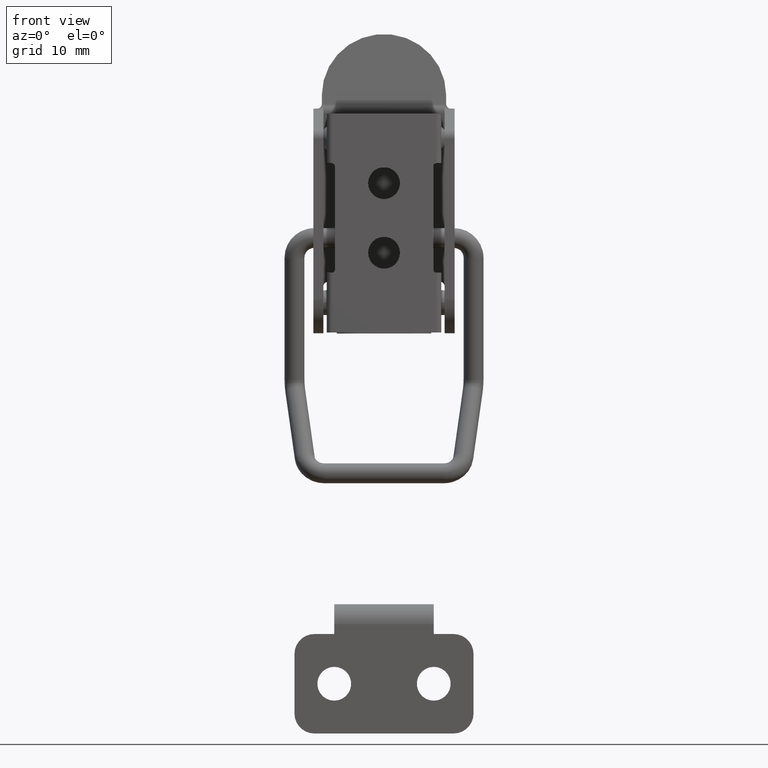
[diagram: clean part render]
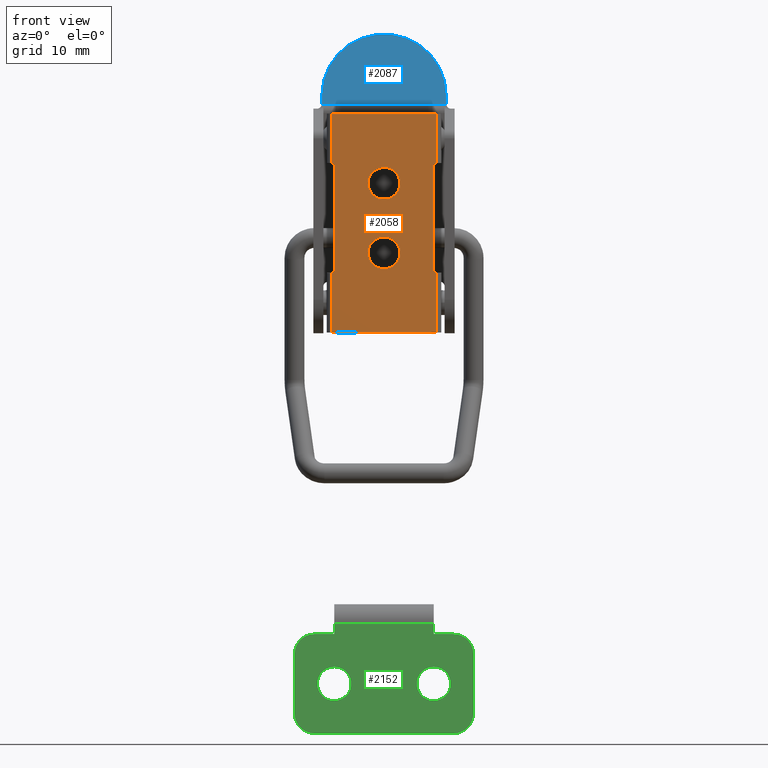
[diagram: same view with three faces highlighted in distinct colors, each labeled with its STEP entity id]
A machine part, front view with three faces highlighted in distinct colors.
Their STEP definitions:

[orange] entity #2058 — the highlighted planar face has unit normal (0, -1, 0).
#74=PLANE('',#2208);
#131=LINE('',#3127,#297);
#141=LINE('',#3158,#307);
#148=LINE('',#3182,#314);
#149=LINE('',#3185,#315);
#150=LINE('',#3187,#316);
#151=LINE('',#3188,#317);
#152=LINE('',#3190,#318);
#153=LINE('',#3191,#319);
#297=VECTOR('',#2466,10.4);
#307=VECTOR('',#2494,10.4);
#314=VECTOR('',#2517,5.99999999999997);
#315=VECTOR('',#2520,5.);
#316=VECTOR('',#2521,10.5);
#317=VECTOR('',#2522,5.);
#318=VECTOR('',#2523,5.99999999999997);
#319=VECTOR('',#2524,10.5);
#465=FACE_BOUND('',#655,.T.);
#466=FACE_BOUND('',#656,.T.);
#528=FACE_OUTER_BOUND('',#654,.T.);
#654=EDGE_LOOP('',(#1461,#1462,#1463,#1464,#1465,#1466,#1467,#1468,#1469,
#1470,#1471,#1472));
#655=EDGE_LOOP('',(#1473));
#656=EDGE_LOOP('',(#1474));
#809=CIRCLE('',#2172,1.6);
#811=CIRCLE('',#2175,1.6);
#820=CIRCLE('',#2189,0.3);
#822=CIRCLE('',#2193,0.3);
#825=CIRCLE('',#2198,0.3);
#827=CIRCLE('',#2202,0.3);
#919=VERTEX_POINT('',#3088);
#921=VERTEX_POINT('',#3093);
#931=VERTEX_POINT('',#3117);
#932=VERTEX_POINT('',#3119);
#934=VERTEX_POINT('',#3125);
#936=VERTEX_POINT('',#3131);
#943=VERTEX_POINT('',#3148);
#944=VERTEX_POINT('',#3150);
#946=VERTEX_POINT('',#3156);
#948=VERTEX_POINT('',#3162);
#953=VERTEX_POINT('',#3176);
#956=VERTEX_POINT('',#3184);
#957=VERTEX_POINT('',#3186);
#958=VERTEX_POINT('',#3189);
#1123=EDGE_CURVE('',#919,#919,#809,.T.);
#1125=EDGE_CURVE('',#921,#921,#811,.T.);
#1135=EDGE_CURVE('',#931,#932,#820,.T.);
#1139=EDGE_CURVE('',#934,#931,#131,.T.);
#1142=EDGE_CURVE('',#936,#934,#822,.T.);
#1150=EDGE_CURVE('',#943,#944,#825,.T.);
#1154=EDGE_CURVE('',#946,#943,#141,.T.);
#1157=EDGE_CURVE('',#948,#946,#827,.T.);
#1166=EDGE_CURVE('',#932,#953,#148,.T.);
#1167=EDGE_CURVE('',#956,#936,#149,.T.);
#1168=EDGE_CURVE('',#957,#956,#150,.T.);
#1169=EDGE_CURVE('',#944,#957,#151,.T.);
#1170=EDGE_CURVE('',#958,#948,#152,.T.);
#1171=EDGE_CURVE('',#953,#958,#153,.T.);
#1461=ORIENTED_EDGE('',*,*,#1166,.F.);
#1462=ORIENTED_EDGE('',*,*,#1135,.F.);
#1463=ORIENTED_EDGE('',*,*,#1139,.F.);
#1464=ORIENTED_EDGE('',*,*,#1142,.F.);
#1465=ORIENTED_EDGE('',*,*,#1167,.F.);
#1466=ORIENTED_EDGE('',*,*,#1168,.F.);
#1467=ORIENTED_EDGE('',*,*,#1169,.F.);
#1468=ORIENTED_EDGE('',*,*,#1150,.F.);
#1469=ORIENTED_EDGE('',*,*,#1154,.F.);
#1470=ORIENTED_EDGE('',*,*,#1157,.F.);
#1471=ORIENTED_EDGE('',*,*,#1170,.F.);
#1472=ORIENTED_EDGE('',*,*,#1171,.F.);
#1473=ORIENTED_EDGE('',*,*,#1123,.T.);
#1474=ORIENTED_EDGE('',*,*,#1125,.T.);
#2058=ADVANCED_FACE('',(#528,#465,#466),#74,.T.);
#2172=AXIS2_PLACEMENT_3D('',#3089,#2424,#2425);
#2175=AXIS2_PLACEMENT_3D('',#3094,#2430,#2431);
#2189=AXIS2_PLACEMENT_3D('',#3120,#2459,#2460);
#2193=AXIS2_PLACEMENT_3D('',#3133,#2472,#2473);
#2198=AXIS2_PLACEMENT_3D('',#3151,#2487,#2488);
#2202=AXIS2_PLACEMENT_3D('',#3164,#2500,#2501);
#2208=AXIS2_PLACEMENT_3D('',#3183,#2518,#2519);
#2424=DIRECTION('center_axis',(0.,1.,0.));
#2425=DIRECTION('ref_axis',(1.,0.,0.));
#2430=DIRECTION('center_axis',(0.,1.,0.));
#2431=DIRECTION('ref_axis',(1.,0.,0.));
#2459=DIRECTION('center_axis',(0.,-1.,0.));
#2460=DIRECTION('ref_axis',(-0.707106781186545,0.,-0.70710678118655));
#2466=DIRECTION('',(0.,0.,-1.));
#2472=DIRECTION('center_axis',(0.,-1.,0.));
#2473=DIRECTION('ref_axis',(-0.707106781186547,0.,0.707106781186547));
#2487=DIRECTION('center_axis',(0.,-1.,0.));
#2488=DIRECTION('ref_axis',(0.707106781186547,0.,0.707106781186547));
#2494=DIRECTION('',(0.,0.,1.));
#2500=DIRECTION('center_axis',(0.,-1.,0.));
#2501=DIRECTION('ref_axis',(0.707106781186545,0.,-0.70710678118655));
#2517=DIRECTION('',(0.,0.,-1.));
#2518=DIRECTION('center_axis',(0.,-1.,0.));
#2519=DIRECTION('ref_axis',(0.,0.,-1.));
#2520=DIRECTION('',(0.,0.,-1.));
#2521=DIRECTION('',(1.,0.,0.));
#2522=DIRECTION('',(0.,0.,1.));
#2523=DIRECTION('',(0.,0.,1.));
#2524=DIRECTION('',(-1.,0.,0.));
#3088=CARTESIAN_POINT('',(-1.6,1.11022302462516E-15,-14.));
#3089=CARTESIAN_POINT('Origin',(0.,1.11022302462516E-15,-14.));
#3093=CARTESIAN_POINT('',(-1.6,5.55111512312578E-16,-7.));
#3094=CARTESIAN_POINT('Origin',(0.,5.55111512312578E-16,-7.));
#3117=CARTESIAN_POINT('',(4.95,0.,-15.7));
#3119=CARTESIAN_POINT('',(5.25,0.,-16.));
#3120=CARTESIAN_POINT('Origin',(5.25,0.,-15.7));
#3125=CARTESIAN_POINT('',(4.95,0.,-5.3));
#3127=CARTESIAN_POINT('',(4.95,0.,-22.));
#3131=CARTESIAN_POINT('',(5.25,0.,-5.));
#3133=CARTESIAN_POINT('Origin',(5.25,0.,-5.3));
#3148=CARTESIAN_POINT('',(-4.95,0.,-5.3));
#3150=CARTESIAN_POINT('',(-5.25,0.,-5.));
#3151=CARTESIAN_POINT('Origin',(-5.25,0.,-5.3));
#3156=CARTESIAN_POINT('',(-4.95,0.,-15.7));
#3158=CARTESIAN_POINT('',(-4.95,0.,-22.));
#3162=CARTESIAN_POINT('',(-5.25,0.,-16.));
#3164=CARTESIAN_POINT('Origin',(-5.25,0.,-15.7));
#3176=CARTESIAN_POINT('',(5.25,0.,-22.));
#3182=CARTESIAN_POINT('',(5.25,0.,-9.50000000000001));
#3183=CARTESIAN_POINT('Origin',(0.,0.,0.));
#3184=CARTESIAN_POINT('',(5.25,0.,0.));
#3185=CARTESIAN_POINT('',(5.25,0.,-1.25));
#3186=CARTESIAN_POINT('',(-5.25,0.,0.));
#3187=CARTESIAN_POINT('',(0.,0.,0.));
#3188=CARTESIAN_POINT('',(-5.25,0.,-1.25));
#3189=CARTESIAN_POINT('',(-5.25,0.,-22.));
#3190=CARTESIAN_POINT('',(-5.25,0.,-9.50000000000001));
#3191=CARTESIAN_POINT('',(0.,0.,-22.));

[blue] entity #2087 — the highlighted planar face has unit normal (0, -0.9821, 0.1883).
#38=ELLIPSE('',#2269,0.509111947282336,0.5);
#39=ELLIPSE('',#2271,0.509111947282336,0.5);
#92=PLANE('',#2268);
#203=LINE('',#3366,#369);
#205=LINE('',#3383,#371);
#206=LINE('',#3387,#372);
#369=VECTOR('',#2692,12.5035831146045);
#371=VECTOR('',#2698,0.877555151719126);
#372=VECTOR('',#2701,0.877579263517805);
#557=FACE_OUTER_BOUND('',#699,.T.);
#699=EDGE_LOOP('',(#1645,#1646,#1647,#1648,#1649,#1650));
#861=CIRCLE('',#2270,6.25);
#1013=VERTEX_POINT('',#3354);
#1014=VERTEX_POINT('',#3365);
#1016=VERTEX_POINT('',#3380);
#1017=VERTEX_POINT('',#3382);
#1018=VERTEX_POINT('',#3384);
#1019=VERTEX_POINT('',#3386);
#1252=EDGE_CURVE('',#1013,#1014,#203,.T.);
#1255=EDGE_CURVE('',#1013,#1016,#38,.F.);
#1256=EDGE_CURVE('',#1016,#1017,#205,.T.);
#1257=EDGE_CURVE('',#1017,#1018,#861,.T.);
#1258=EDGE_CURVE('',#1018,#1019,#206,.T.);
#1259=EDGE_CURVE('',#1014,#1019,#39,.T.);
#1645=ORIENTED_EDGE('',*,*,#1252,.F.);
#1646=ORIENTED_EDGE('',*,*,#1255,.T.);
#1647=ORIENTED_EDGE('',*,*,#1256,.T.);
#1648=ORIENTED_EDGE('',*,*,#1257,.T.);
#1649=ORIENTED_EDGE('',*,*,#1258,.T.);
#1650=ORIENTED_EDGE('',*,*,#1259,.F.);
#2087=ADVANCED_FACE('',(#557),#92,.T.);
#2268=AXIS2_PLACEMENT_3D('',#3379,#2694,#2695);
#2269=AXIS2_PLACEMENT_3D('',#3381,#2696,#2697);
#2270=AXIS2_PLACEMENT_3D('',#3385,#2699,#2700);
#2271=AXIS2_PLACEMENT_3D('',#3388,#2702,#2703);
#2692=DIRECTION('',(-1.,0.,0.));
#2694=DIRECTION('center_axis',(0.,-0.982102279234616,0.188348382318967));
#2695=DIRECTION('ref_axis',(0.,-0.188348382318967,-0.982102279234616));
#2696=DIRECTION('center_axis',(0.,-0.982102279234616,0.188348382318967));
#2697=DIRECTION('ref_axis',(0.000655570145907855,-0.188348341845512,-0.982102068194457));
#2698=DIRECTION('',(-7.54870686361461E-15,0.188348382318967,0.982102279234616));
#2699=DIRECTION('center_axis',(0.,-0.982102279234616,0.188348382318967));
#2700=DIRECTION('ref_axis',(-0.00186497332754989,-0.188348054769026,-0.982100571295635));
#2701=DIRECTION('',(-3.74274385603184E-15,-0.188348382318967,-0.982102279234616));
#2702=DIRECTION('center_axis',(0.,-0.982102279234616,0.188348382318967));
#2703=DIRECTION('ref_axis',(0.000655570145891977,-0.188348341845512,-0.982102068194457));
#3354=CARTESIAN_POINT('',(6.25189133919547,4.38778021910342,19.6577111424678));
#3365=CARTESIAN_POINT('',(-6.251691775409,4.38778021910342,19.6577111424678));
#3366=CARTESIAN_POINT('',(0.,4.38778021910342,19.6577111424678));
#3379=CARTESIAN_POINT('Origin',(0.,5.73835616438356,26.7));
#3380=CARTESIAN_POINT('',(6.25009878048241,4.39589268166804,19.7000118401262));
#3381=CARTESIAN_POINT('Origin',(6.75009878443415,4.3958904109589,19.7));
#3382=CARTESIAN_POINT('',(6.25009878048241,4.56117877489001,20.5618607547837));
#3383=CARTESIAN_POINT('',(6.25009878048238,5.03336812744065,23.0239909502263));
#3384=CARTESIAN_POINT('',(-6.24990121951759,4.56117877489001,20.5618607547836));
#3385=CARTESIAN_POINT('Origin',(9.87804824081895E-5,4.56117877489001,20.5618607547836));
#3386=CARTESIAN_POINT('',(-6.24990121951759,4.39588814024976,19.6999881598738));
#3387=CARTESIAN_POINT('',(-6.24990121951758,5.14477943269388,23.6049213276181));
#3388=CARTESIAN_POINT('Origin',(-6.74990122346934,4.3958904109589,19.7));

[green] entity #2152 — the highlighted planar face has unit normal (0, -1, 0).
#119=PLANE('',#2395);
#258=LINE('',#3643,#424);
#270=LINE('',#3675,#436);
#273=LINE('',#3688,#439);
#276=LINE('',#3693,#442);
#277=LINE('',#3694,#443);
#278=LINE('',#3696,#444);
#279=LINE('',#3700,#445);
#280=LINE('',#3704,#446);
#424=VECTOR('',#2977,1.);
#436=VECTOR('',#3003,0.999999999999999);
#439=VECTOR('',#3016,6.);
#442=VECTOR('',#3021,2.);
#443=VECTOR('',#3022,10.);
#444=VECTOR('',#3023,2.);
#445=VECTOR('',#3026,6.);
#446=VECTOR('',#3029,14.);
#509=FACE_BOUND('',#793,.T.);
#510=FACE_BOUND('',#794,.T.);
#622=FACE_OUTER_BOUND('',#792,.T.);
#792=EDGE_LOOP('',(#1913,#1914,#1915,#1916,#1917,#1918,#1919,#1920,#1921,
#1922,#1923,#1924));
#793=EDGE_LOOP('',(#1925));
#794=EDGE_LOOP('',(#1926));
#903=CIRCLE('',#2373,1.7);
#905=CIRCLE('',#2376,1.7);
#911=CIRCLE('',#2392,2.);
#913=CIRCLE('',#2396,2.);
#914=CIRCLE('',#2397,2.);
#915=CIRCLE('',#2398,2.);
#1083=VERTEX_POINT('',#3619);
#1085=VERTEX_POINT('',#3624);
#1092=VERTEX_POINT('',#3640);
#1093=VERTEX_POINT('',#3642);
#1105=VERTEX_POINT('',#3672);
#1106=VERTEX_POINT('',#3674);
#1107=VERTEX_POINT('',#3678);
#1108=VERTEX_POINT('',#3679);
#1111=VERTEX_POINT('',#3687);
#1113=VERTEX_POINT('',#3695);
#1114=VERTEX_POINT('',#3697);
#1115=VERTEX_POINT('',#3699);
#1116=VERTEX_POINT('',#3701);
#1117=VERTEX_POINT('',#3703);
#1353=EDGE_CURVE('',#1083,#1083,#903,.T.);
#1355=EDGE_CURVE('',#1085,#1085,#905,.T.);
#1363=EDGE_CURVE('',#1093,#1092,#258,.T.);
#1379=EDGE_CURVE('',#1106,#1105,#270,.T.);
#1381=EDGE_CURVE('',#1107,#1108,#911,.T.);
#1385=EDGE_CURVE('',#1108,#1111,#273,.T.);
#1388=EDGE_CURVE('',#1107,#1093,#276,.T.);
#1389=EDGE_CURVE('',#1092,#1106,#277,.T.);
#1390=EDGE_CURVE('',#1105,#1113,#278,.T.);
#1391=EDGE_CURVE('',#1114,#1113,#913,.T.);
#1392=EDGE_CURVE('',#1115,#1114,#279,.T.);
#1393=EDGE_CURVE('',#1116,#1115,#914,.T.);
#1394=EDGE_CURVE('',#1117,#1116,#280,.T.);
#1395=EDGE_CURVE('',#1111,#1117,#915,.T.);
#1913=ORIENTED_EDGE('',*,*,#1381,.F.);
#1914=ORIENTED_EDGE('',*,*,#1388,.T.);
#1915=ORIENTED_EDGE('',*,*,#1363,.T.);
#1916=ORIENTED_EDGE('',*,*,#1389,.T.);
#1917=ORIENTED_EDGE('',*,*,#1379,.T.);
#1918=ORIENTED_EDGE('',*,*,#1390,.T.);
#1919=ORIENTED_EDGE('',*,*,#1391,.F.);
#1920=ORIENTED_EDGE('',*,*,#1392,.F.);
#1921=ORIENTED_EDGE('',*,*,#1393,.F.);
#1922=ORIENTED_EDGE('',*,*,#1394,.F.);
#1923=ORIENTED_EDGE('',*,*,#1395,.F.);
#1924=ORIENTED_EDGE('',*,*,#1385,.F.);
#1925=ORIENTED_EDGE('',*,*,#1353,.T.);
#1926=ORIENTED_EDGE('',*,*,#1355,.T.);
#2152=ADVANCED_FACE('',(#622,#509,#510),#119,.T.);
#2373=AXIS2_PLACEMENT_3D('',#3620,#2954,#2955);
#2376=AXIS2_PLACEMENT_3D('',#3625,#2960,#2961);
#2392=AXIS2_PLACEMENT_3D('',#3680,#3008,#3009);
#2395=AXIS2_PLACEMENT_3D('',#3692,#3019,#3020);
#2396=AXIS2_PLACEMENT_3D('',#3698,#3024,#3025);
#2397=AXIS2_PLACEMENT_3D('',#3702,#3027,#3028);
#2398=AXIS2_PLACEMENT_3D('',#3705,#3030,#3031);
#2954=DIRECTION('center_axis',(-3.70308974894277E-16,1.,0.));
#2955=DIRECTION('ref_axis',(1.,2.90171926890666E-16,0.));
#2960=DIRECTION('center_axis',(-3.70308974894277E-16,1.,0.));
#2961=DIRECTION('ref_axis',(1.,2.90171926890666E-16,0.));
#2977=DIRECTION('',(1.,3.70308974894277E-16,-1.38777878078145E-16));
#3003=DIRECTION('',(-1.,-3.70308974894277E-16,0.));
#3008=DIRECTION('center_axis',(-3.70308974894277E-16,1.,0.));
#3009=DIRECTION('ref_axis',(0.707106781186547,1.96261557335472E-16,-0.707106781186548));
#3016=DIRECTION('',(-1.,-3.70308974894277E-16,0.));
#3019=DIRECTION('center_axis',(3.70308974894277E-16,-1.,0.));
#3020=DIRECTION('ref_axis',(1.,3.70308974894277E-16,0.));
#3021=DIRECTION('',(2.77555756156289E-16,1.02781387538241E-31,1.));
#3022=DIRECTION('',(0.,0.,1.));
#3023=DIRECTION('',(0.,0.,1.));
#3024=DIRECTION('center_axis',(-3.70308974894277E-16,1.,0.));
#3025=DIRECTION('ref_axis',(0.707106781186547,1.96261557335472E-16,0.707106781186548));
#3026=DIRECTION('',(1.,3.70308974894277E-16,0.));
#3027=DIRECTION('center_axis',(-3.70308974894277E-16,1.,0.));
#3028=DIRECTION('ref_axis',(-0.707106781186547,-1.96261557335472E-15,0.707106781186548));
#3029=DIRECTION('',(0.,0.,1.));
#3030=DIRECTION('center_axis',(-3.70308974894277E-16,1.,0.));
#3031=DIRECTION('ref_axis',(-0.707106781186547,-1.96261557335472E-15,-0.707106781186548));
#3619=CARTESIAN_POINT('',(-7.7,-2.71373832496445E-15,4.));
#3620=CARTESIAN_POINT('Origin',(-6.,-2.22044604925031E-15,4.));
#3624=CARTESIAN_POINT('',(-7.7,-2.71373832496445E-15,14.));
#3625=CARTESIAN_POINT('Origin',(-6.,-2.22044604925031E-15,14.));
#3640=CARTESIAN_POINT('',(0.,0.,4.));
#3642=CARTESIAN_POINT('',(-1.,-2.77555756156289E-16,4.));
#3643=CARTESIAN_POINT('',(-3.,-1.11022302462516E-15,4.));
#3672=CARTESIAN_POINT('',(-0.999999999999998,-2.77555756156289E-16,14.));
#3674=CARTESIAN_POINT('',(0.,0.,14.));
#3675=CARTESIAN_POINT('',(-6.,-2.22044604925031E-15,14.));
#3678=CARTESIAN_POINT('',(-1.,-4.16333634234434E-16,2.));
#3679=CARTESIAN_POINT('',(-3.,-1.11092692468283E-15,0.));
#3680=CARTESIAN_POINT('Origin',(-3.,-1.80411241501588E-15,2.));
#3687=CARTESIAN_POINT('',(-9.,-3.33278077404849E-15,0.));
#3688=CARTESIAN_POINT('',(0.,0.,0.));
#3692=CARTESIAN_POINT('Origin',(-11.,-4.07339872383704E-15,0.));
#3693=CARTESIAN_POINT('',(-1.,-4.16333634234434E-16,-1.38777878078145E-15));
#3694=CARTESIAN_POINT('',(0.,0.,0.));
#3695=CARTESIAN_POINT('',(-0.999999999999999,-4.16333634234434E-16,16.));
#3696=CARTESIAN_POINT('',(-0.999999999999999,-4.16333634234434E-16,9.));
#3697=CARTESIAN_POINT('',(-3.,-1.11092692468283E-15,18.));
#3698=CARTESIAN_POINT('Origin',(-3.,-1.80411241501588E-15,16.));
#3699=CARTESIAN_POINT('',(-9.,-3.33278077404849E-15,18.));
#3700=CARTESIAN_POINT('',(0.,0.,18.));
#3701=CARTESIAN_POINT('',(-11.,-4.07339872383704E-15,16.));
#3702=CARTESIAN_POINT('Origin',(-9.,1.52655665885959E-15,16.));
#3703=CARTESIAN_POINT('',(-11.,-4.07339872383704E-15,2.));
#3704=CARTESIAN_POINT('',(-11.,-4.07339872383704E-15,0.));
#3705=CARTESIAN_POINT('Origin',(-9.,1.52655665885959E-15,2.));